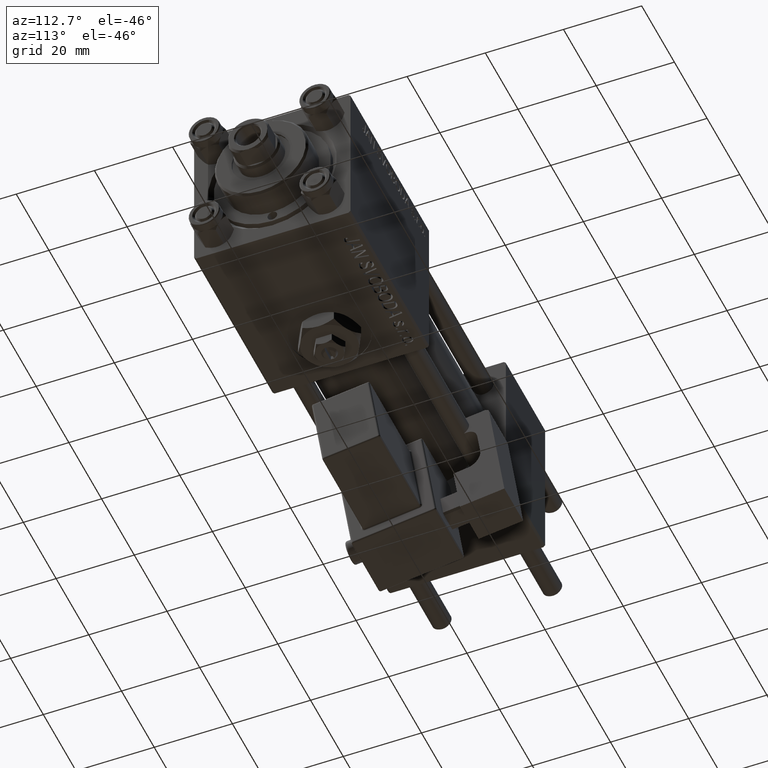
[diagram: clean part render]
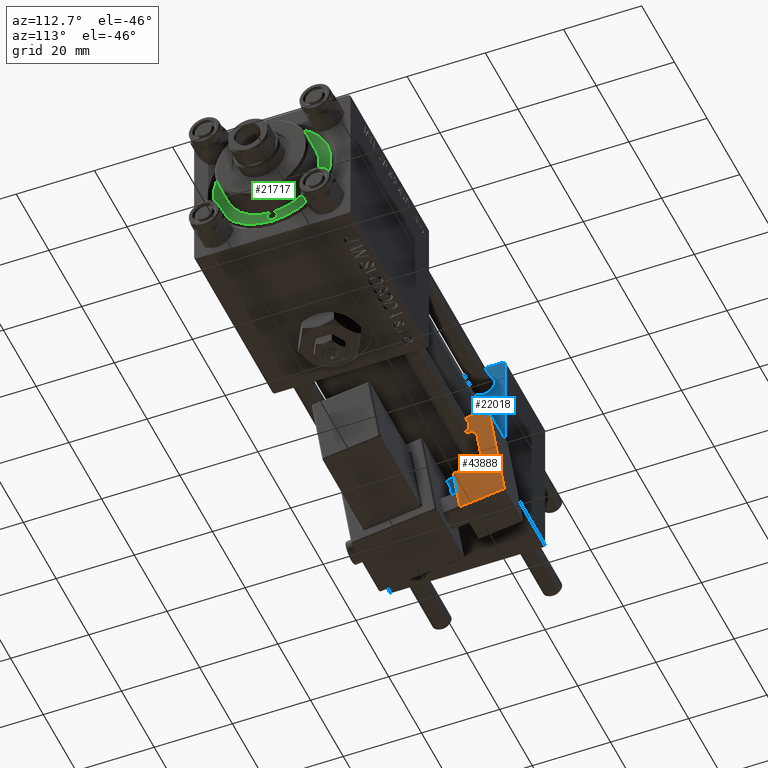
[diagram: same view with three faces highlighted in distinct colors, each labeled with its STEP entity id]
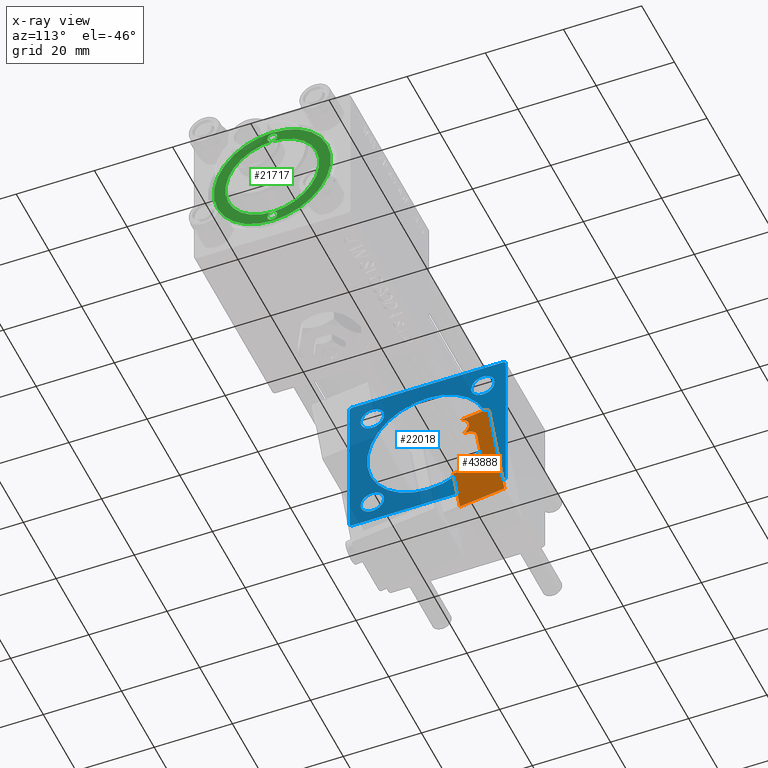
[diagram: x-ray of the same camera — body ghosted, the three highlighted faces saturated]
A machine part, auxiliary view with three faces highlighted in distinct colors.
The next image is the same camera in x-ray (body ghosted, the three faces saturated) — at least one of them is partly hidden behind the body in this view.
Their STEP definitions:

[orange] entity #43888 — the highlighted planar face has unit normal (-1, 0, -0).
#116 = VECTOR ( 'NONE', #39989, 1000.000000000000000 ) ;
#1262 = LINE ( 'NONE', #34496, #17688 ) ;
#2099 = VECTOR ( 'NONE', #34765, 1000.000000000000000 ) ;
#2132 = VECTOR ( 'NONE', #8071, 1000.000000000000000 ) ;
#2144 = CARTESIAN_POINT ( 'NONE',  ( 5.750000000000000000, -1.249999999999999334, 29.00000000000000000 ) ) ;
#2365 = CARTESIAN_POINT ( 'NONE',  ( 5.750000000000000000, -0.7500000000000007772, 21.50000000000000000 ) ) ;
#3127 = ORIENTED_EDGE ( 'NONE', *, *, #37685, .T. ) ;
#3227 = CARTESIAN_POINT ( 'NONE',  ( 5.750000000000000000, -0.5546638387921266622, 28.42055319899344212 ) ) ;
#3633 = CARTESIAN_POINT ( 'NONE',  ( 5.750000000000000000, 5.750000000000001776, 28.00000000000000000 ) ) ;
#4517 = VERTEX_POINT ( 'NONE', #35635 ) ;
#4713 = DIRECTION ( 'NONE',  ( -1.000000000000000000, 0.000000000000000000, 0.000000000000000000 ) ) ;
#4881 = CIRCLE ( 'NONE', #30131, 1.000000000000000888 ) ;
#5101 = CARTESIAN_POINT ( 'NONE',  ( 5.750000000000000000, -1.249999999999999334, 24.00000000000000000 ) ) ;
#5309 = EDGE_CURVE ( 'NONE', #32647, #4517, #39457, .T. ) ;
#5446 = AXIS2_PLACEMENT_3D ( 'NONE', #26149, #22328, #51223 ) ;
#5841 = VECTOR ( 'NONE', #50069, 1000.000000000000000 ) ;
#6252 = VERTEX_POINT ( 'NONE', #3227 ) ;
#6292 = CARTESIAN_POINT ( 'NONE',  ( 5.750000000000000000, 1.749999999999999778, 26.50000000000000355 ) ) ;
#6458 = CIRCLE ( 'NONE', #43003, 2.499999999999998668 ) ;
#7821 = CARTESIAN_POINT ( 'NONE',  ( 5.750000000000000000, -0.5546638387921229985, 24.57944680100656498 ) ) ;
#8071 = DIRECTION ( 'NONE',  ( -0.000000000000000000, 1.000000000000000000, -0.000000000000000000 ) ) ;
#8916 = LINE ( 'NONE', #21433, #5841 ) ;
#9081 = DIRECTION ( 'NONE',  ( 1.000000000000000000, -0.000000000000000000, -0.000000000000000000 ) ) ;
#9173 = DIRECTION ( 'NONE',  ( 0.000000000000000000, 0.7682212795973759611, -0.6401843996644797086 ) ) ;
#11316 = EDGE_CURVE ( 'NONE', #12942, #51994, #25417, .T. ) ;
#12025 = VERTEX_POINT ( 'NONE', #3633 ) ;
#12889 = DIRECTION ( 'NONE',  ( 0.000000000000000000, 0.000000000000000000, 1.000000000000000000 ) ) ;
#12915 = CARTESIAN_POINT ( 'NONE',  ( 5.750000000000000000, -2.155124837953325212, 26.50000000000000355 ) ) ;
#12942 = VERTEX_POINT ( 'NONE', #43900 ) ;
#13055 = EDGE_CURVE ( 'NONE', #14970, #52349, #42420, .T. ) ;
#14406 = CARTESIAN_POINT ( 'NONE',  ( 5.750000000000000000, -5.750000000000000000, 12.00000000000000000 ) ) ;
#14970 = VERTEX_POINT ( 'NONE', #43855 ) ;
#15341 = CARTESIAN_POINT ( 'NONE',  ( 5.750000000000000000, -2.250000000000001776, 12.00000000000000000 ) ) ;
#15613 = VECTOR ( 'NONE', #30491, 1000.000000000000000 ) ;
#16017 = ORIENTED_EDGE ( 'NONE', *, *, #24482, .T. ) ;
#16695 = DIRECTION ( 'NONE',  ( 0.000000000000000000, -2.602085213965208275E-15, 1.000000000000000000 ) ) ;
#16965 = FACE_OUTER_BOUND ( 'NONE', #40726, .T. ) ;
#17164 = AXIS2_PLACEMENT_3D ( 'NONE', #2365, #32043, #36644 ) ;
#17264 = LINE ( 'NONE', #38505, #49038 ) ;
#17688 = VECTOR ( 'NONE', #9173, 1000.000000000000114 ) ;
#17728 = EDGE_CURVE ( 'NONE', #6252, #32040, #6458, .T. ) ;
#17887 = DIRECTION ( 'NONE',  ( 0.000000000000000000, 1.000000000000000000, 0.000000000000000000 ) ) ;
#18083 = DIRECTION ( 'NONE',  ( -1.000000000000000000, 0.000000000000000000, 0.000000000000000000 ) ) ;
#19020 = LINE ( 'NONE', #23112, #116 ) ;
#19360 = EDGE_CURVE ( 'NONE', #4517, #25650, #53826, .T. ) ;
#20288 = ORIENTED_EDGE ( 'NONE', *, *, #5309, .T. ) ;
#20617 = EDGE_CURVE ( 'NONE', #32040, #14970, #35428, .T. ) ;
#21433 = CARTESIAN_POINT ( 'NONE',  ( 5.750000000000000000, 5.750000000000001776, 12.00000000000000000 ) ) ;
#21863 = CARTESIAN_POINT ( 'NONE',  ( 5.750000000000000000, 4.750000000000001776, 28.00000000000000000 ) ) ;
#22328 = DIRECTION ( 'NONE',  ( -1.000000000000000000, 0.000000000000000000, 0.000000000000000000 ) ) ;
#22820 = ORIENTED_EDGE ( 'NONE', *, *, #42726, .T. ) ;
#23034 = EDGE_CURVE ( 'NONE', #12025, #35671, #4881, .T. ) ;
#23112 = CARTESIAN_POINT ( 'NONE',  ( 5.750000000000000000, 5.750000000000000000, 29.00000000000000000 ) ) ;
#24110 = ORIENTED_EDGE ( 'NONE', *, *, #52799, .F. ) ;
#24482 = EDGE_CURVE ( 'NONE', #52349, #37646, #32804, .T. ) ;
#25417 = CIRCLE ( 'NONE', #5446, 4.000000000000000000 ) ;
#25650 = VERTEX_POINT ( 'NONE', #52760 ) ;
#26149 = CARTESIAN_POINT ( 'NONE',  ( 5.750000000000000000, -2.250000000000002665, 16.00000000000000000 ) ) ;
#26163 = ORIENTED_EDGE ( 'NONE', *, *, #11316, .T. ) ;
#26328 = ORIENTED_EDGE ( 'NONE', *, *, #17728, .T. ) ;
#27472 = ORIENTED_EDGE ( 'NONE', *, *, #20617, .T. ) ;
#28008 = ORIENTED_EDGE ( 'NONE', *, *, #32679, .T. ) ;
#29877 = LINE ( 'NONE', #46496, #2099 ) ;
#30131 = AXIS2_PLACEMENT_3D ( 'NONE', #21863, #9081, #16695 ) ;
#30491 = DIRECTION ( 'NONE',  ( -0.000000000000000000, -0.000000000000000000, -1.000000000000000000 ) ) ;
#31221 = CARTESIAN_POINT ( 'NONE',  ( 5.750000000000000000, 4.750000000000002665, 29.00000000000000000 ) ) ;
#31297 = CARTESIAN_POINT ( 'NONE',  ( 5.750000000000000000, -5.750000000000000000, 12.00000000000000000 ) ) ;
#32040 = VERTEX_POINT ( 'NONE', #7821 ) ;
#32043 = DIRECTION ( 'NONE',  ( -1.000000000000000000, 0.000000000000000000, 0.000000000000000000 ) ) ;
#32647 = VERTEX_POINT ( 'NONE', #31297 ) ;
#32679 = EDGE_CURVE ( 'NONE', #35671, #51607, #19020, .T. ) ;
#32804 = CIRCLE ( 'NONE', #17164, 2.499999999999998668 ) ;
#33602 = PLANE ( 'NONE',  #37775 ) ;
#33881 = ORIENTED_EDGE ( 'NONE', *, *, #13055, .T. ) ;
#34405 = VECTOR ( 'NONE', #43072, 1000.000000000000114 ) ;
#34496 = CARTESIAN_POINT ( 'NONE',  ( 5.750000000000000000, -1.249999999999999334, 29.00000000000000000 ) ) ;
#34765 = DIRECTION ( 'NONE',  ( 0.000000000000000000, -3.071906155375595568E-16, -1.000000000000000000 ) ) ;
#35428 = LINE ( 'NONE', #6292, #34405 ) ;
#35635 = CARTESIAN_POINT ( 'NONE',  ( 5.750000000000000000, -5.750000000000000000, 0.000000000000000000 ) ) ;
#35671 = VERTEX_POINT ( 'NONE', #31221 ) ;
#36644 = DIRECTION ( 'NONE',  ( 0.000000000000000000, 0.000000000000000000, 1.000000000000000000 ) ) ;
#37646 = VERTEX_POINT ( 'NONE', #47039 ) ;
#37685 = EDGE_CURVE ( 'NONE', #51607, #6252, #1262, .T. ) ;
#37775 = AXIS2_PLACEMENT_3D ( 'NONE', #50226, #4713, #12889 ) ;
#38232 = DIRECTION ( 'NONE',  ( -0.000000000000000000, -0.000000000000000000, -1.000000000000000000 ) ) ;
#38505 = CARTESIAN_POINT ( 'NONE',  ( 5.750000000000000000, 5.750000000000001776, 12.00000000000000000 ) ) ;
#39141 = ORIENTED_EDGE ( 'NONE', *, *, #19360, .T. ) ;
#39457 = LINE ( 'NONE', #14406, #15613 ) ;
#39989 = DIRECTION ( 'NONE',  ( 0.000000000000000000, -1.000000000000000000, 0.000000000000000000 ) ) ;
#40726 = EDGE_LOOP ( 'NONE', ( #50699, #51149, #28008, #3127, #26328, #27472, #33881, #16017, #22820, #26163, #24110, #20288, #39141 ) ) ;
#40761 = CARTESIAN_POINT ( 'NONE',  ( 5.750000000000000000, 5.750000000000001776, 0.000000000000000000 ) ) ;
#41855 = EDGE_CURVE ( 'NONE', #12025, #25650, #17264, .T. ) ;
#42058 = DIRECTION ( 'NONE',  ( 0.000000000000000000, 0.000000000000000000, 1.000000000000000000 ) ) ;
#42420 = LINE ( 'NONE', #5101, #48998 ) ;
#42726 = EDGE_CURVE ( 'NONE', #37646, #12942, #29877, .T. ) ;
#43003 = AXIS2_PLACEMENT_3D ( 'NONE', #12915, #18083, #42058 ) ;
#43072 = DIRECTION ( 'NONE',  ( 0.000000000000000000, -0.7682212795973755171, -0.6401843996644802637 ) ) ;
#43855 = CARTESIAN_POINT ( 'NONE',  ( 5.750000000000000000, -1.249999999999999334, 24.00000000000000000 ) ) ;
#43888 = ADVANCED_FACE ( 'NONE', ( #16965 ), #33602, .F. ) ;
#43900 = CARTESIAN_POINT ( 'NONE',  ( 5.750000000000000000, 1.749999999999997558, 16.00000000000000000 ) ) ;
#44423 = CARTESIAN_POINT ( 'NONE',  ( 5.750000000000000000, -0.7500000000000007772, 24.00000000000000000 ) ) ;
#46496 = CARTESIAN_POINT ( 'NONE',  ( 5.750000000000000000, 1.750000000000000000, 24.00000000000000000 ) ) ;
#47039 = CARTESIAN_POINT ( 'NONE',  ( 5.750000000000000000, 1.749999999999999112, 21.50000000000000000 ) ) ;
#48998 = VECTOR ( 'NONE', #17887, 1000.000000000000000 ) ;
#49038 = VECTOR ( 'NONE', #38232, 1000.000000000000000 ) ;
#50069 = DIRECTION ( 'NONE',  ( -0.000000000000000000, 1.000000000000000000, -0.000000000000000000 ) ) ;
#50226 = CARTESIAN_POINT ( 'NONE',  ( 5.750000000000000000, 5.750000000000001776, 12.00000000000000000 ) ) ;
#50699 = ORIENTED_EDGE ( 'NONE', *, *, #41855, .F. ) ;
#51149 = ORIENTED_EDGE ( 'NONE', *, *, #23034, .T. ) ;
#51223 = DIRECTION ( 'NONE',  ( 0.000000000000000000, 0.000000000000000000, 1.000000000000000000 ) ) ;
#51607 = VERTEX_POINT ( 'NONE', #2144 ) ;
#51994 = VERTEX_POINT ( 'NONE', #15341 ) ;
#52349 = VERTEX_POINT ( 'NONE', #44423 ) ;
#52760 = CARTESIAN_POINT ( 'NONE',  ( 5.750000000000000000, 5.750000000000001776, 0.000000000000000000 ) ) ;
#52799 = EDGE_CURVE ( 'NONE', #32647, #51994, #8916, .T. ) ;
#53826 = LINE ( 'NONE', #40761, #2132 ) ;

[blue] entity #22018 — the highlighted planar face has unit normal (-1, 0, 0).
#1348 = CARTESIAN_POINT ( 'NONE',  ( 24.00000000000000000, 14.14999999999999858, -11.15000000000002700 ) ) ;
#1395 = AXIS2_PLACEMENT_3D ( 'NONE', #30784, #46872, #35136 ) ;
#1543 = CARTESIAN_POINT ( 'NONE',  ( 24.00000000000000000, -20.00000000000000355, 19.99999999999998934 ) ) ;
#1792 = VECTOR ( 'NONE', #23408, 1000.000000000000000 ) ;
#2134 = AXIS2_PLACEMENT_3D ( 'NONE', #31413, #41708, #50174 ) ;
#2259 = EDGE_CURVE ( 'NONE', #25499, #13230, #47853, .T. ) ;
#3009 = CARTESIAN_POINT ( 'NONE',  ( 24.00000000000000000, 20.00000000000000000, -19.50000000000002132 ) ) ;
#3286 = DIRECTION ( 'NONE',  ( 0.000000000000000000, 0.000000000000000000, -1.000000000000000000 ) ) ;
#3978 = CARTESIAN_POINT ( 'NONE',  ( 24.00000000000000000, 14.14999999999999858, 14.15000000000000036 ) ) ;
#4385 = DIRECTION ( 'NONE',  ( 0.000000000000000000, -1.000000000000000000, -2.602085213965210149E-16 ) ) ;
#4621 = EDGE_LOOP ( 'NONE', ( #25275, #26498 ) ) ;
#5109 = CARTESIAN_POINT ( 'NONE',  ( 24.00000000000000000, 14.14999999999999858, -14.15000000000000036 ) ) ;
#5210 = ORIENTED_EDGE ( 'NONE', *, *, #15716, .F. ) ;
#5422 = EDGE_CURVE ( 'NONE', #52745, #45656, #49551, .T. ) ;
#5980 = DIRECTION ( 'NONE',  ( 0.000000000000000000, 0.000000000000000000, 1.000000000000000000 ) ) ;
#6366 = LINE ( 'NONE', #30611, #25810 ) ;
#6391 = VERTEX_POINT ( 'NONE', #49805 ) ;
#6564 = ORIENTED_EDGE ( 'NONE', *, *, #14677, .T. ) ;
#6786 = DIRECTION ( 'NONE',  ( 0.000000000000000000, 0.000000000000000000, 1.000000000000000000 ) ) ;
#7027 = EDGE_CURVE ( 'NONE', #22050, #11660, #18784, .T. ) ;
#7401 = EDGE_LOOP ( 'NONE', ( #35445, #11523 ) ) ;
#7529 = EDGE_CURVE ( 'NONE', #45656, #52745, #52273, .T. ) ;
#7570 = CIRCLE ( 'NONE', #41520, 3.000000000000000888 ) ;
#8369 = AXIS2_PLACEMENT_3D ( 'NONE', #5109, #21446, #21982 ) ;
#8940 = EDGE_CURVE ( 'NONE', #13230, #11660, #51045, .T. ) ;
#9220 = DIRECTION ( 'NONE',  ( 1.000000000000000000, 0.000000000000000000, 0.000000000000000000 ) ) ;
#9580 = VECTOR ( 'NONE', #4385, 1000.000000000000000 ) ;
#9784 = DIRECTION ( 'NONE',  ( -1.000000000000000000, -0.000000000000000000, -0.000000000000000000 ) ) ;
#9830 = LINE ( 'NONE', #48763, #17459 ) ;
#10068 = CARTESIAN_POINT ( 'NONE',  ( 24.00000000000000000, -14.14999999999999503, 14.15000000000000391 ) ) ;
#10092 = FACE_BOUND ( 'NONE', #4621, .T. ) ;
#10265 = CARTESIAN_POINT ( 'NONE',  ( 24.00000000000000000, -14.14999999999999503, 17.15000000000000568 ) ) ;
#10341 = ORIENTED_EDGE ( 'NONE', *, *, #8940, .T. ) ;
#10458 = DIRECTION ( 'NONE',  ( -0.000000000000000000, -0.7071067811865500152, -0.7071067811865451302 ) ) ;
#11486 = VERTEX_POINT ( 'NONE', #12478 ) ;
#11523 = ORIENTED_EDGE ( 'NONE', *, *, #5422, .T. ) ;
#11660 = VERTEX_POINT ( 'NONE', #31528 ) ;
#11845 = CIRCLE ( 'NONE', #24041, 3.000000000000000888 ) ;
#12478 = CARTESIAN_POINT ( 'NONE',  ( 24.00000000000000000, 20.00000000000000000, 19.49999999999999289 ) ) ;
#12823 = ORIENTED_EDGE ( 'NONE', *, *, #39491, .F. ) ;
#13088 = LINE ( 'NONE', #16904, #9580 ) ;
#13230 = VERTEX_POINT ( 'NONE', #14878 ) ;
#14103 = DIRECTION ( 'NONE',  ( 0.000000000000000000, 0.000000000000000000, 1.000000000000000000 ) ) ;
#14161 = FACE_BOUND ( 'NONE', #33723, .T. ) ;
#14267 = AXIS2_PLACEMENT_3D ( 'NONE', #52899, #27303, #26769 ) ;
#14677 = EDGE_CURVE ( 'NONE', #34224, #35759, #37732, .T. ) ;
#14780 = AXIS2_PLACEMENT_3D ( 'NONE', #19820, #31840, #6786 ) ;
#14878 = CARTESIAN_POINT ( 'NONE',  ( 24.00000000000000000, -20.00000000000000000, -19.49999999999999645 ) ) ;
#15278 = ORIENTED_EDGE ( 'NONE', *, *, #22529, .T. ) ;
#15716 = EDGE_CURVE ( 'NONE', #6391, #48946, #25608, .T. ) ;
#16406 = DIRECTION ( 'NONE',  ( 0.000000000000000000, 0.000000000000000000, 1.000000000000000000 ) ) ;
#16862 = AXIS2_PLACEMENT_3D ( 'NONE', #26121, #9784, #30754 ) ;
#16904 = CARTESIAN_POINT ( 'NONE',  ( 24.00000000000000000, 20.00000000000000000, 20.00000000000000000 ) ) ;
#17221 = DIRECTION ( 'NONE',  ( -1.000000000000000000, -0.000000000000000000, -0.000000000000000000 ) ) ;
#17430 = CARTESIAN_POINT ( 'NONE',  ( 24.00000000000000000, -14.14999999999999503, -11.15000000000000391 ) ) ;
#17459 = VECTOR ( 'NONE', #28570, 999.9999999999998863 ) ;
#18146 = DIRECTION ( 'NONE',  ( 0.000000000000000000, 8.673617379884036705E-17, -1.000000000000000000 ) ) ;
#18784 = LINE ( 'NONE', #31598, #1792 ) ;
#19242 = DIRECTION ( 'NONE',  ( 0.000000000000000000, 0.000000000000000000, 1.000000000000000000 ) ) ;
#19700 = VERTEX_POINT ( 'NONE', #43335 ) ;
#19820 = CARTESIAN_POINT ( 'NONE',  ( 24.00000000000000000, 14.14999999999999858, 14.15000000000000036 ) ) ;
#20361 = CIRCLE ( 'NONE', #16862, 2.999999999999976463 ) ;
#20453 = ORIENTED_EDGE ( 'NONE', *, *, #46203, .T. ) ;
#20587 = DIRECTION ( 'NONE',  ( 0.000000000000000000, 0.000000000000000000, 1.000000000000000000 ) ) ;
#21330 = CARTESIAN_POINT ( 'NONE',  ( 24.00000000000000000, -19.50000000000000711, -20.00000000000000000 ) ) ;
#21446 = DIRECTION ( 'NONE',  ( -1.000000000000000000, -0.000000000000000000, -0.000000000000000000 ) ) ;
#21982 = DIRECTION ( 'NONE',  ( 0.000000000000000000, 0.000000000000000000, 1.000000000000000000 ) ) ;
#22018 = ADVANCED_FACE ( 'NONE', ( #14161, #50960, #10092, #26426, #43320, #22059 ), #22596, .F. ) ;
#22050 = VERTEX_POINT ( 'NONE', #38135 ) ;
#22059 = FACE_OUTER_BOUND ( 'NONE', #41937, .T. ) ;
#22529 = EDGE_CURVE ( 'NONE', #35759, #34224, #11845, .T. ) ;
#22596 = PLANE ( 'NONE',  #1395 ) ;
#22614 = VECTOR ( 'NONE', #18146, 1000.000000000000000 ) ;
#22911 = LINE ( 'NONE', #32700, #38488 ) ;
#23054 = ORIENTED_EDGE ( 'NONE', *, *, #30850, .T. ) ;
#23069 = CARTESIAN_POINT ( 'NONE',  ( 24.00000000000000000, -14.14999999999999503, -14.15000000000000391 ) ) ;
#23182 = LINE ( 'NONE', #3009, #45837 ) ;
#23394 = EDGE_CURVE ( 'NONE', #48946, #6391, #24084, .T. ) ;
#23408 = DIRECTION ( 'NONE',  ( 0.000000000000000000, -1.000000000000000000, 1.734723475976807094E-16 ) ) ;
#23694 = CARTESIAN_POINT ( 'NONE',  ( 24.00000000000000000, 14.14999999999999858, -17.14999999999997726 ) ) ;
#23763 = EDGE_CURVE ( 'NONE', #37605, #27756, #52801, .T. ) ;
#23999 = VERTEX_POINT ( 'NONE', #1348 ) ;
#24041 = AXIS2_PLACEMENT_3D ( 'NONE', #23069, #27963, #19242 ) ;
#24084 = CIRCLE ( 'NONE', #25796, 15.50000000000000000 ) ;
#24322 = CARTESIAN_POINT ( 'NONE',  ( 24.00000000000000000, 19.50000000000000000, 20.00000000000000000 ) ) ;
#24588 = VERTEX_POINT ( 'NONE', #49739 ) ;
#24939 = DIRECTION ( 'NONE',  ( -1.000000000000000000, -0.000000000000000000, -0.000000000000000000 ) ) ;
#25275 = ORIENTED_EDGE ( 'NONE', *, *, #52678, .T. ) ;
#25499 = VERTEX_POINT ( 'NONE', #51686 ) ;
#25608 = CIRCLE ( 'NONE', #2134, 15.50000000000000000 ) ;
#25796 = AXIS2_PLACEMENT_3D ( 'NONE', #50629, #9220, #14103 ) ;
#25810 = VECTOR ( 'NONE', #10458, 1000.000000000000114 ) ;
#26105 = CARTESIAN_POINT ( 'NONE',  ( 24.00000000000000000, 14.14999999999999858, 11.15000000000002700 ) ) ;
#26121 = CARTESIAN_POINT ( 'NONE',  ( 24.00000000000000000, 14.14999999999999858, -14.15000000000000036 ) ) ;
#26248 = CARTESIAN_POINT ( 'NONE',  ( 24.00000000000000000, 0.000000000000000000, 15.50000000000000000 ) ) ;
#26426 = FACE_BOUND ( 'NONE', #7401, .T. ) ;
#26498 = ORIENTED_EDGE ( 'NONE', *, *, #23763, .T. ) ;
#26678 = DIRECTION ( 'NONE',  ( -1.000000000000000000, -0.000000000000000000, -0.000000000000000000 ) ) ;
#26769 = DIRECTION ( 'NONE',  ( 0.000000000000000000, 0.000000000000000000, 1.000000000000000000 ) ) ;
#27303 = DIRECTION ( 'NONE',  ( -1.000000000000000000, -0.000000000000000000, -0.000000000000000000 ) ) ;
#27756 = VERTEX_POINT ( 'NONE', #37470 ) ;
#27963 = DIRECTION ( 'NONE',  ( -1.000000000000000000, -0.000000000000000000, -0.000000000000000000 ) ) ;
#28533 = CARTESIAN_POINT ( 'NONE',  ( 24.00000000000000000, 14.14999999999999858, 17.14999999999997726 ) ) ;
#28570 = DIRECTION ( 'NONE',  ( 0.000000000000000000, -0.7071067811865425767, 0.7071067811865525687 ) ) ;
#29300 = AXIS2_PLACEMENT_3D ( 'NONE', #32770, #17221, #16406 ) ;
#29840 = EDGE_CURVE ( 'NONE', #43882, #19700, #13088, .T. ) ;
#30611 = CARTESIAN_POINT ( 'NONE',  ( 24.00000000000000000, -20.00000000000000355, 19.49999999999998224 ) ) ;
#30754 = DIRECTION ( 'NONE',  ( 0.000000000000000000, 0.000000000000000000, 1.000000000000000000 ) ) ;
#30784 = CARTESIAN_POINT ( 'NONE',  ( 24.00000000000000000, 0.000000000000000000, 0.000000000000000000 ) ) ;
#30850 = EDGE_CURVE ( 'NONE', #11486, #43882, #9830, .T. ) ;
#31413 = CARTESIAN_POINT ( 'NONE',  ( 24.00000000000000000, 0.000000000000000000, 0.000000000000000000 ) ) ;
#31528 = CARTESIAN_POINT ( 'NONE',  ( 24.00000000000000000, -19.50000000000000711, -20.00000000000000000 ) ) ;
#31598 = CARTESIAN_POINT ( 'NONE',  ( 24.00000000000000000, 20.00000000000000000, -20.00000000000000711 ) ) ;
#31840 = DIRECTION ( 'NONE',  ( -1.000000000000000000, -0.000000000000000000, -0.000000000000000000 ) ) ;
#32694 = CIRCLE ( 'NONE', #8369, 2.999999999999976463 ) ;
#32700 = CARTESIAN_POINT ( 'NONE',  ( 24.00000000000000000, 20.00000000000000000, 20.00000000000000000 ) ) ;
#32770 = CARTESIAN_POINT ( 'NONE',  ( 24.00000000000000000, -14.14999999999999503, 14.15000000000000391 ) ) ;
#33723 = EDGE_LOOP ( 'NONE', ( #15278, #6564 ) ) ;
#34062 = VECTOR ( 'NONE', #37945, 1000.000000000000000 ) ;
#34224 = VERTEX_POINT ( 'NONE', #17430 ) ;
#35136 = DIRECTION ( 'NONE',  ( -0.000000000000000000, 0.000000000000000000, 1.000000000000000000 ) ) ;
#35445 = ORIENTED_EDGE ( 'NONE', *, *, #7529, .T. ) ;
#35759 = VERTEX_POINT ( 'NONE', #43744 ) ;
#36263 = VERTEX_POINT ( 'NONE', #23694 ) ;
#37470 = CARTESIAN_POINT ( 'NONE',  ( 24.00000000000000000, -14.14999999999999503, 11.15000000000000391 ) ) ;
#37605 = VERTEX_POINT ( 'NONE', #10265 ) ;
#37732 = CIRCLE ( 'NONE', #14267, 3.000000000000000888 ) ;
#37945 = DIRECTION ( 'NONE',  ( 0.000000000000000000, 0.7071067811865401342, -0.7071067811865549002 ) ) ;
#38135 = CARTESIAN_POINT ( 'NONE',  ( 24.00000000000000000, 19.50000000000000711, -20.00000000000000711 ) ) ;
#38488 = VECTOR ( 'NONE', #3286, 1000.000000000000000 ) ;
#39491 = EDGE_CURVE ( 'NONE', #11486, #24588, #22911, .T. ) ;
#40286 = ORIENTED_EDGE ( 'NONE', *, *, #49002, .T. ) ;
#40358 = ORIENTED_EDGE ( 'NONE', *, *, #2259, .T. ) ;
#40544 = ORIENTED_EDGE ( 'NONE', *, *, #23394, .F. ) ;
#41520 = AXIS2_PLACEMENT_3D ( 'NONE', #10068, #26678, #5980 ) ;
#41708 = DIRECTION ( 'NONE',  ( 1.000000000000000000, 0.000000000000000000, 0.000000000000000000 ) ) ;
#41937 = EDGE_LOOP ( 'NONE', ( #53701, #44412, #12823, #23054, #42577, #40286, #40358, #10341 ) ) ;
#42464 = EDGE_CURVE ( 'NONE', #23999, #36263, #20361, .T. ) ;
#42577 = ORIENTED_EDGE ( 'NONE', *, *, #29840, .T. ) ;
#43320 = FACE_BOUND ( 'NONE', #49325, .T. ) ;
#43335 = CARTESIAN_POINT ( 'NONE',  ( 24.00000000000000000, -19.49999999999999289, 19.99999999999998934 ) ) ;
#43744 = CARTESIAN_POINT ( 'NONE',  ( 24.00000000000000000, -14.14999999999999503, -17.15000000000000568 ) ) ;
#43882 = VERTEX_POINT ( 'NONE', #24322 ) ;
#44412 = ORIENTED_EDGE ( 'NONE', *, *, #52351, .T. ) ;
#44444 = AXIS2_PLACEMENT_3D ( 'NONE', #3978, #24939, #20587 ) ;
#45656 = VERTEX_POINT ( 'NONE', #26105 ) ;
#45837 = VECTOR ( 'NONE', #48786, 1000.000000000000000 ) ;
#46203 = EDGE_CURVE ( 'NONE', #36263, #23999, #32694, .T. ) ;
#46872 = DIRECTION ( 'NONE',  ( -1.000000000000000000, 0.000000000000000000, -0.000000000000000000 ) ) ;
#47707 = EDGE_LOOP ( 'NONE', ( #20453, #49890 ) ) ;
#47853 = LINE ( 'NONE', #1543, #22614 ) ;
#48763 = CARTESIAN_POINT ( 'NONE',  ( 24.00000000000000000, 19.50000000000000000, 20.00000000000000000 ) ) ;
#48786 = DIRECTION ( 'NONE',  ( -0.000000000000000000, 0.7071067811865524577, 0.7071067811865426878 ) ) ;
#48946 = VERTEX_POINT ( 'NONE', #26248 ) ;
#49002 = EDGE_CURVE ( 'NONE', #19700, #25499, #6366, .T. ) ;
#49325 = EDGE_LOOP ( 'NONE', ( #40544, #5210 ) ) ;
#49551 = CIRCLE ( 'NONE', #14780, 2.999999999999976463 ) ;
#49739 = CARTESIAN_POINT ( 'NONE',  ( 24.00000000000000000, 20.00000000000000000, -19.50000000000002132 ) ) ;
#49805 = CARTESIAN_POINT ( 'NONE',  ( 24.00000000000000000, 1.898202538678397557E-15, -15.50000000000000000 ) ) ;
#49890 = ORIENTED_EDGE ( 'NONE', *, *, #42464, .T. ) ;
#50174 = DIRECTION ( 'NONE',  ( 0.000000000000000000, 0.000000000000000000, 1.000000000000000000 ) ) ;
#50629 = CARTESIAN_POINT ( 'NONE',  ( 24.00000000000000000, 0.000000000000000000, 0.000000000000000000 ) ) ;
#50960 = FACE_BOUND ( 'NONE', #47707, .T. ) ;
#51045 = LINE ( 'NONE', #21330, #34062 ) ;
#51686 = CARTESIAN_POINT ( 'NONE',  ( 24.00000000000000000, -20.00000000000000355, 19.49999999999998224 ) ) ;
#52273 = CIRCLE ( 'NONE', #44444, 2.999999999999976463 ) ;
#52351 = EDGE_CURVE ( 'NONE', #22050, #24588, #23182, .T. ) ;
#52678 = EDGE_CURVE ( 'NONE', #27756, #37605, #7570, .T. ) ;
#52745 = VERTEX_POINT ( 'NONE', #28533 ) ;
#52801 = CIRCLE ( 'NONE', #29300, 3.000000000000000888 ) ;
#52899 = CARTESIAN_POINT ( 'NONE',  ( 24.00000000000000000, -14.14999999999999503, -14.15000000000000391 ) ) ;
#53701 = ORIENTED_EDGE ( 'NONE', *, *, #7027, .F. ) ;

[green] entity #21717 — the highlighted planar face has unit normal (1, 0, -0).
#1516 = CIRCLE ( 'NONE', #33675, 15.00000000000000000 ) ;
#1717 = AXIS2_PLACEMENT_3D ( 'NONE', #34548, #43527, #6214 ) ;
#2641 = DIRECTION ( 'NONE',  ( 1.000000000000000000, 0.000000000000000000, 0.000000000000000000 ) ) ;
#4371 = EDGE_CURVE ( 'NONE', #6590, #37225, #53111, .T. ) ;
#4904 = DIRECTION ( 'NONE',  ( 1.000000000000000000, 0.000000000000000000, 0.000000000000000000 ) ) ;
#5583 = VERTEX_POINT ( 'NONE', #43760 ) ;
#5977 = ORIENTED_EDGE ( 'NONE', *, *, #52793, .T. ) ;
#6214 = DIRECTION ( 'NONE',  ( 1.000000000000000000, 0.000000000000000000, 0.000000000000000000 ) ) ;
#6590 = VERTEX_POINT ( 'NONE', #37717 ) ;
#7497 = CIRCLE ( 'NONE', #11851, 12.00000000000000178 ) ;
#7517 = DIRECTION ( 'NONE',  ( 0.000000000000000000, 0.000000000000000000, 1.000000000000000000 ) ) ;
#11421 = EDGE_LOOP ( 'NONE', ( #5977, #46048 ) ) ;
#11601 = CARTESIAN_POINT ( 'NONE',  ( -13.25000000000000178, 0.000000000000000000, 28.69999999999999929 ) ) ;
#11851 = AXIS2_PLACEMENT_3D ( 'NONE', #23343, #32063, #2641 ) ;
#12080 = CARTESIAN_POINT ( 'NONE',  ( -15.00000000000000000, 0.000000000000000000, 28.69999999999999929 ) ) ;
#12700 = CARTESIAN_POINT ( 'NONE',  ( 0.000000000000000000, 0.000000000000000000, 28.69999999999999929 ) ) ;
#12730 = DIRECTION ( 'NONE',  ( 0.000000000000000000, 0.000000000000000000, 1.000000000000000000 ) ) ;
#13534 = DIRECTION ( 'NONE',  ( 1.000000000000000000, 0.000000000000000000, 0.000000000000000000 ) ) ;
#14221 = FACE_BOUND ( 'NONE', #20183, .T. ) ;
#15399 = EDGE_CURVE ( 'NONE', #5583, #32230, #42097, .T. ) ;
#15851 = ORIENTED_EDGE ( 'NONE', *, *, #45559, .F. ) ;
#16119 = AXIS2_PLACEMENT_3D ( 'NONE', #25834, #21474, #33757 ) ;
#16142 = AXIS2_PLACEMENT_3D ( 'NONE', #11601, #7517, #24123 ) ;
#17143 = CARTESIAN_POINT ( 'NONE',  ( 14.49999999999999822, 0.000000000000000000, 28.69999999999999929 ) ) ;
#18615 = AXIS2_PLACEMENT_3D ( 'NONE', #12700, #24679, #41313 ) ;
#20183 = EDGE_LOOP ( 'NONE', ( #45031, #34550, #31669, #40806, #15851, #52570 ) ) ;
#21474 = DIRECTION ( 'NONE',  ( 0.000000000000000000, 0.000000000000000000, 1.000000000000000000 ) ) ;
#21602 = EDGE_CURVE ( 'NONE', #43911, #42317, #50983, .T. ) ;
#21717 = ADVANCED_FACE ( 'NONE', ( #14221, #35198 ), #47202, .T. ) ;
#23248 = AXIS2_PLACEMENT_3D ( 'NONE', #30507, #42216, #4904 ) ;
#23343 = CARTESIAN_POINT ( 'NONE',  ( 0.000000000000000000, 0.000000000000000000, 28.69999999999999929 ) ) ;
#24123 = DIRECTION ( 'NONE',  ( 1.000000000000000000, 0.000000000000000000, 0.000000000000000000 ) ) ;
#24679 = DIRECTION ( 'NONE',  ( 0.000000000000000000, 0.000000000000000000, 1.000000000000000000 ) ) ;
#25834 = CARTESIAN_POINT ( 'NONE',  ( 13.25000000000000000, 0.000000000000000000, 28.69999999999999929 ) ) ;
#28253 = EDGE_CURVE ( 'NONE', #42317, #43911, #37388, .T. ) ;
#29220 = AXIS2_PLACEMENT_3D ( 'NONE', #43109, #50745, #42559 ) ;
#29622 = AXIS2_PLACEMENT_3D ( 'NONE', #34028, #31028, #30481 ) ;
#30481 = DIRECTION ( 'NONE',  ( 1.000000000000000000, 0.000000000000000000, 0.000000000000000000 ) ) ;
#30507 = CARTESIAN_POINT ( 'NONE',  ( 0.000000000000000000, 0.000000000000000000, 28.69999999999999929 ) ) ;
#31028 = DIRECTION ( 'NONE',  ( 0.000000000000000000, 0.000000000000000000, 1.000000000000000000 ) ) ;
#31669 = ORIENTED_EDGE ( 'NONE', *, *, #21602, .F. ) ;
#32063 = DIRECTION ( 'NONE',  ( 0.000000000000000000, 0.000000000000000000, 1.000000000000000000 ) ) ;
#32230 = VERTEX_POINT ( 'NONE', #12080 ) ;
#33675 = AXIS2_PLACEMENT_3D ( 'NONE', #42417, #12730, #13534 ) ;
#33757 = DIRECTION ( 'NONE',  ( 1.000000000000000000, 0.000000000000000000, 0.000000000000000000 ) ) ;
#34028 = CARTESIAN_POINT ( 'NONE',  ( 13.25000000000000000, 0.000000000000000000, 28.69999999999999929 ) ) ;
#34548 = CARTESIAN_POINT ( 'NONE',  ( -13.25000000000000178, 0.000000000000000000, 28.69999999999999929 ) ) ;
#34550 = ORIENTED_EDGE ( 'NONE', *, *, #28253, .F. ) ;
#35198 = FACE_OUTER_BOUND ( 'NONE', #11421, .T. ) ;
#37225 = VERTEX_POINT ( 'NONE', #17143 ) ;
#37388 = CIRCLE ( 'NONE', #1717, 1.249999999999997558 ) ;
#37717 = CARTESIAN_POINT ( 'NONE',  ( 12.00000000000000178, 0.000000000000000000, 28.69999999999999929 ) ) ;
#37935 = CARTESIAN_POINT ( 'NONE',  ( -12.00000000000000178, 0.000000000000000000, 28.69999999999999929 ) ) ;
#39768 = CIRCLE ( 'NONE', #23248, 12.00000000000000178 ) ;
#40468 = CIRCLE ( 'NONE', #16119, 1.249999999999999334 ) ;
#40806 = ORIENTED_EDGE ( 'NONE', *, *, #47221, .F. ) ;
#41313 = DIRECTION ( 'NONE',  ( 1.000000000000000000, 0.000000000000000000, 0.000000000000000000 ) ) ;
#42097 = CIRCLE ( 'NONE', #18615, 15.00000000000000000 ) ;
#42216 = DIRECTION ( 'NONE',  ( 0.000000000000000000, 0.000000000000000000, 1.000000000000000000 ) ) ;
#42317 = VERTEX_POINT ( 'NONE', #46025 ) ;
#42417 = CARTESIAN_POINT ( 'NONE',  ( 0.000000000000000000, 0.000000000000000000, 28.69999999999999929 ) ) ;
#42559 = DIRECTION ( 'NONE',  ( 1.000000000000000000, 0.000000000000000000, -0.000000000000000000 ) ) ;
#43109 = CARTESIAN_POINT ( 'NONE',  ( 0.000000000000000000, 0.000000000000000000, 28.69999999999999929 ) ) ;
#43527 = DIRECTION ( 'NONE',  ( 0.000000000000000000, 0.000000000000000000, 1.000000000000000000 ) ) ;
#43760 = CARTESIAN_POINT ( 'NONE',  ( 15.00000000000000000, 1.836970198721029589E-15, 28.69999999999999929 ) ) ;
#43911 = VERTEX_POINT ( 'NONE', #37935 ) ;
#45031 = ORIENTED_EDGE ( 'NONE', *, *, #53402, .F. ) ;
#45559 = EDGE_CURVE ( 'NONE', #37225, #6590, #40468, .T. ) ;
#46025 = CARTESIAN_POINT ( 'NONE',  ( -14.49999999999999822, 1.530808498934190585E-16, 28.69999999999999929 ) ) ;
#46048 = ORIENTED_EDGE ( 'NONE', *, *, #15399, .T. ) ;
#47202 = PLANE ( 'NONE',  #29220 ) ;
#47221 = EDGE_CURVE ( 'NONE', #6590, #43911, #7497, .T. ) ;
#50745 = DIRECTION ( 'NONE',  ( 0.000000000000000000, 0.000000000000000000, 1.000000000000000000 ) ) ;
#50983 = CIRCLE ( 'NONE', #16142, 1.249999999999997558 ) ;
#52570 = ORIENTED_EDGE ( 'NONE', *, *, #4371, .F. ) ;
#52793 = EDGE_CURVE ( 'NONE', #32230, #5583, #1516, .T. ) ;
#53111 = CIRCLE ( 'NONE', #29622, 1.249999999999999334 ) ;
#53402 = EDGE_CURVE ( 'NONE', #43911, #6590, #39768, .T. ) ;